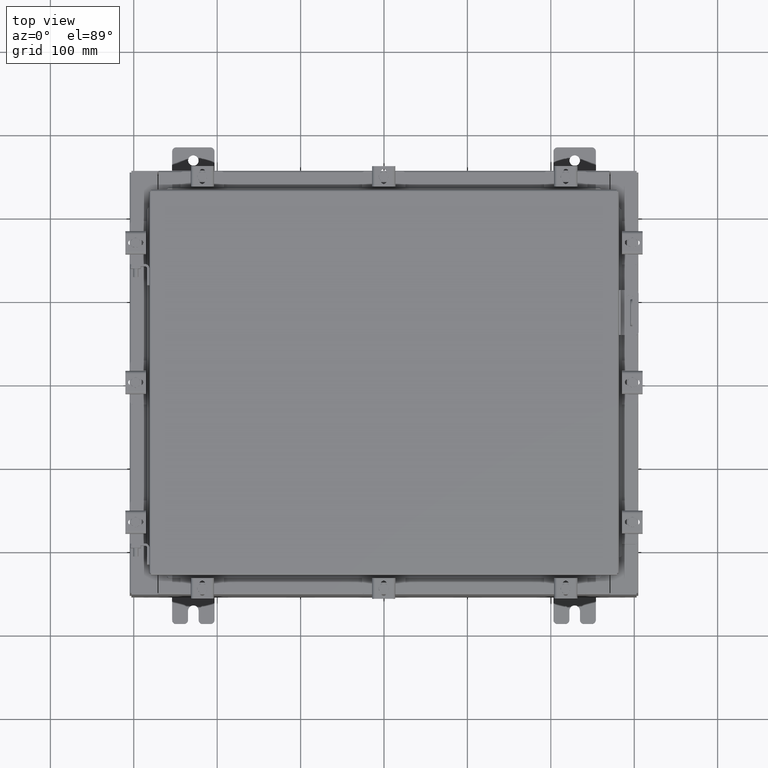
[diagram: clean part render]
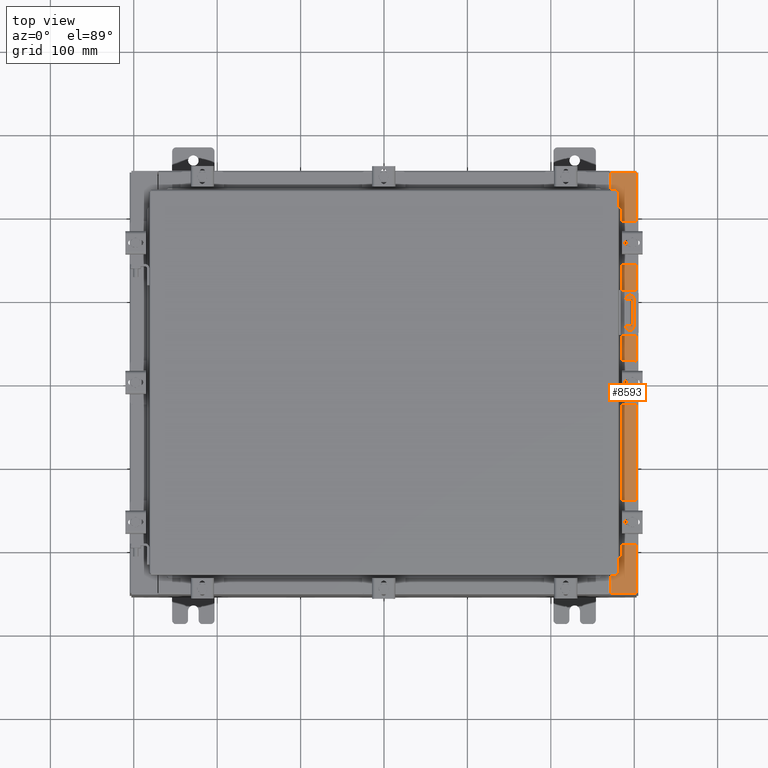
[diagram: same view with one face highlighted and labeled with its STEP entity id]
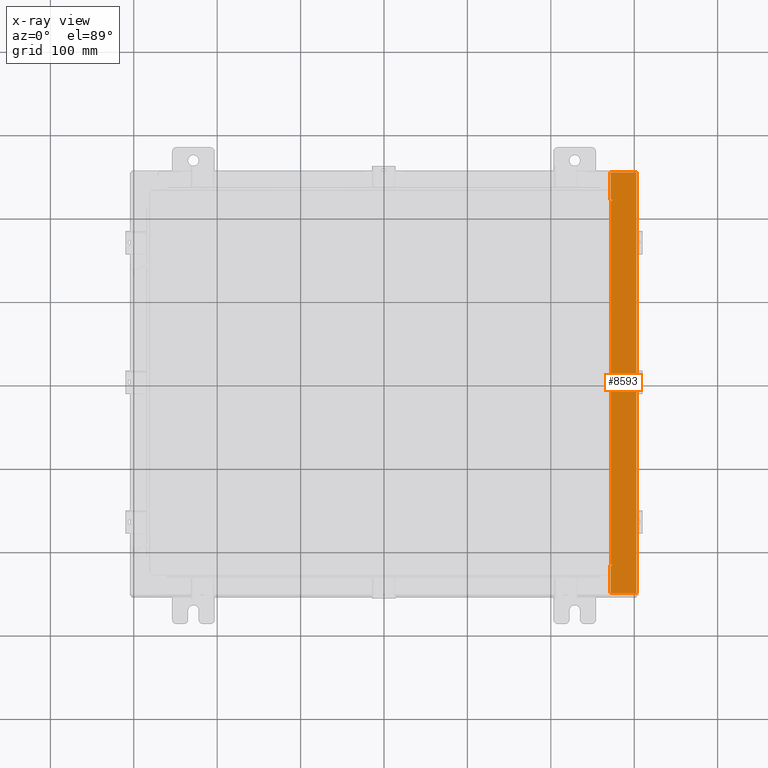
[diagram: x-ray of the same camera — body ghosted, the highlighted face saturated]
A machine part, top view. The second image highlights one B-rep face of the part: STEP entity #8593.
The next image is the same camera in x-ray: the body ghosted, the highlighted face saturated — about 0% of this face is hidden behind the body in this view.
In plain terms, the highlighted planar face has unit normal (-0, 0, -1).
Its self-contained STEP definition (entity closure, byte-faithful):
#111 = ORIENTED_EDGE ( 'NONE', *, *, #254, .T. ) ;
#127 = EDGE_CURVE ( 'NONE', #11660, #14030, #6519, .T. ) ;
#254 = EDGE_CURVE ( 'NONE', #18483, #17868, #808, .T. ) ;
#571 = ORIENTED_EDGE ( 'NONE', *, *, #13013, .T. ) ;
#588 = LINE ( 'NONE', #12952, #5761 ) ;
#620 = VECTOR ( 'NONE', #3052, 39.37007874015748100 ) ;
#745 = DIRECTION ( 'NONE',  ( -0.0000000000000000000, 1.000000000000000000, -0.0000000000000000000 ) ) ;
#808 = LINE ( 'NONE', #12925, #8984 ) ;
#1196 = LINE ( 'NONE', #20434, #620 ) ;
#1209 = ORIENTED_EDGE ( 'NONE', *, *, #2148, .F. ) ;
#1398 = VERTEX_POINT ( 'NONE', #4276 ) ;
#1487 = DIRECTION ( 'NONE',  ( 7.132762385546384700E-015, 0.0000000000000000000, 1.000000000000000000 ) ) ;
#1531 = CARTESIAN_POINT ( 'NONE',  ( 10.69970000000002800, 9.925299999999992900, 7.925300000000008900 ) ) ;
#1819 = CARTESIAN_POINT ( 'NONE',  ( 10.69970000000002800, 1.177997802698536000E-015, 7.925300000000008900 ) ) ;
#2040 = VECTOR ( 'NONE', #18435, 39.37007874015748100 ) ;
#2148 = EDGE_CURVE ( 'NONE', #22126, #11660, #22000, .T. ) ;
#2288 = CARTESIAN_POINT ( 'NONE',  ( 10.69970000000003000, -9.925300000000001800, 7.925300000000008900 ) ) ;
#2714 = ORIENTED_EDGE ( 'NONE', *, *, #20983, .F. ) ;
#3016 = CARTESIAN_POINT ( 'NONE',  ( 10.75005000000003000, -8.612425000000001800, 7.925300000000009800 ) ) ;
#3052 = DIRECTION ( 'NONE',  ( -1.000000000000000000, 2.170286390199955400E-014, -2.170286390199955400E-014 ) ) ;
#3524 = ORIENTED_EDGE ( 'NONE', *, *, #8739, .T. ) ;
#3925 = CARTESIAN_POINT ( 'NONE',  ( 10.75005000000003000, 8.593749999999994700, 7.925300000000008900 ) ) ;
#3950 = VECTOR ( 'NONE', #15756, 39.37007874015748100 ) ;
#4162 = ORIENTED_EDGE ( 'NONE', *, *, #10059, .F. ) ;
#4176 = EDGE_CURVE ( 'NONE', #20957, #13509, #22478, .T. ) ;
#4201 = EDGE_CURVE ( 'NONE', #18989, #20957, #12658, .T. ) ;
#4276 = CARTESIAN_POINT ( 'NONE',  ( 11.91230000000002700, -9.925300000000001800, 7.925300000000000000 ) ) ;
#4877 = CARTESIAN_POINT ( 'NONE',  ( 10.75005000000003000, 8.631099999999996400, 7.925300000000008900 ) ) ;
#4943 = PLANE ( 'NONE',  #20844 ) ;
#5319 = VECTOR ( 'NONE', #14526, 39.37007874015748100 ) ;
#5365 = EDGE_CURVE ( 'NONE', #16488, #18989, #588, .T. ) ;
#5761 = VECTOR ( 'NONE', #745, 39.37007874015748100 ) ;
#5959 = DIRECTION ( 'NONE',  ( -1.000000000000000000, 0.0000000000000000000, 0.0000000000000000000 ) ) ;
#6173 = CARTESIAN_POINT ( 'NONE',  ( 10.71270000000003000, 8.593749999999996400, 7.925300000000009800 ) ) ;
#6192 = CARTESIAN_POINT ( 'NONE',  ( 10.69970000000002800, 8.631099999999996400, 7.925300000000008900 ) ) ;
#6519 = CIRCLE ( 'NONE', #9938, 0.01867499999999949400 ) ;
#6837 = VERTEX_POINT ( 'NONE', #2288 ) ;
#6999 = CARTESIAN_POINT ( 'NONE',  ( 10.69970000000002800, -8.631100000000003500, 7.925300000000008900 ) ) ;
#7761 = CARTESIAN_POINT ( 'NONE',  ( 10.71270000000003000, -8.593750000000003600, 7.925300000000009800 ) ) ;
#8020 = VECTOR ( 'NONE', #8569, 39.37007874015748100 ) ;
#8068 = EDGE_LOOP ( 'NONE', ( #1209, #8471, #571, #2714, #111, #3524, #4162, #17581, #19713, #20200, #16867, #10732 ) ) ;
#8471 = ORIENTED_EDGE ( 'NONE', *, *, #14288, .T. ) ;
#8569 = DIRECTION ( 'NONE',  ( 1.000000000000000000, 0.0000000000000000000, 0.0000000000000000000 ) ) ;
#8593 = ADVANCED_FACE ( 'NONE', ( #14335 ), #4943, .F. ) ;
#8609 = LINE ( 'NONE', #1819, #3950 ) ;
#8739 = EDGE_CURVE ( 'NONE', #17868, #18334, #8609, .T. ) ;
#8777 = CARTESIAN_POINT ( 'NONE',  ( 5.679009539018295300E-014, -9.925300000000001800, 7.925300000000085300 ) ) ;
#8799 = VECTOR ( 'NONE', #17522, 39.37007874015748100 ) ;
#8984 = VECTOR ( 'NONE', #16658, 39.37007874015748100 ) ;
#9938 = AXIS2_PLACEMENT_3D ( 'NONE', #3016, #22226, #20923 ) ;
#10041 = CARTESIAN_POINT ( 'NONE',  ( 11.91230000000002700, 9.925299999999991100, 7.925300000000000000 ) ) ;
#10059 = EDGE_CURVE ( 'NONE', #13509, #18334, #1196, .T. ) ;
#10222 = DIRECTION ( 'NONE',  ( -7.132762385546384700E-015, 0.0000000000000000000, -1.000000000000000000 ) ) ;
#10732 = ORIENTED_EDGE ( 'NONE', *, *, #127, .F. ) ;
#11027 = CARTESIAN_POINT ( 'NONE',  ( 11.91230000000002700, -9.925300000000001800, 7.925300000000000000 ) ) ;
#11660 = VERTEX_POINT ( 'NONE', #14427 ) ;
#11944 = CARTESIAN_POINT ( 'NONE',  ( 10.75005000000003000, 8.612424999999996400, 7.925300000000009800 ) ) ;
#12658 = LINE ( 'NONE', #19014, #8020 ) ;
#12770 = VECTOR ( 'NONE', #5959, 39.37007874015748100 ) ;
#12925 = CARTESIAN_POINT ( 'NONE',  ( 5.679009539018295300E-014, 9.925299999999996500, 7.925300000000085300 ) ) ;
#12952 = CARTESIAN_POINT ( 'NONE',  ( 10.71270000000003000, -8.593750000000003600, 7.925300000000009800 ) ) ;
#13013 = EDGE_CURVE ( 'NONE', #6837, #1398, #13450, .T. ) ;
#13450 = LINE ( 'NONE', #8777, #8799 ) ;
#13509 = VERTEX_POINT ( 'NONE', #4877 ) ;
#13680 = DIRECTION ( 'NONE',  ( 1.000000000000000000, 0.0000000000000000000, 0.0000000000000000000 ) ) ;
#14030 = VERTEX_POINT ( 'NONE', #20104 ) ;
#14288 = EDGE_CURVE ( 'NONE', #22126, #6837, #20036, .T. ) ;
#14335 = FACE_OUTER_BOUND ( 'NONE', #8068, .T. ) ;
#14427 = CARTESIAN_POINT ( 'NONE',  ( 10.75005000000003000, -8.631100000000003500, 7.925300000000008900 ) ) ;
#14526 = DIRECTION ( 'NONE',  ( -0.0000000000000000000, -1.000000000000000000, -0.0000000000000000000 ) ) ;
#15356 = DIRECTION ( 'NONE',  ( 1.000000000000000000, 2.170286390199955400E-014, 2.170286390199955400E-014 ) ) ;
#15756 = DIRECTION ( 'NONE',  ( 1.100963394019027800E-016, -1.000000000000000000, -7.852910284722405000E-031 ) ) ;
#16488 = VERTEX_POINT ( 'NONE', #7761 ) ;
#16658 = DIRECTION ( 'NONE',  ( -1.000000000000000000, 0.0000000000000000000, 7.132762385546384700E-015 ) ) ;
#16660 = CARTESIAN_POINT ( 'NONE',  ( 10.69970000000002800, 1.177997802698536000E-015, 7.925300000000008900 ) ) ;
#16867 = ORIENTED_EDGE ( 'NONE', *, *, #18216, .F. ) ;
#17121 = CARTESIAN_POINT ( 'NONE',  ( 10.69970000000002800, -8.631100000000003500, 7.925300000000008900 ) ) ;
#17391 = LINE ( 'NONE', #18097, #12770 ) ;
#17522 = DIRECTION ( 'NONE',  ( 1.000000000000000000, 0.0000000000000000000, -7.132762385546384700E-015 ) ) ;
#17581 = ORIENTED_EDGE ( 'NONE', *, *, #4176, .F. ) ;
#17868 = VERTEX_POINT ( 'NONE', #1531 ) ;
#17907 = VECTOR ( 'NONE', #15356, 39.37007874015748100 ) ;
#18097 = CARTESIAN_POINT ( 'NONE',  ( 10.75005000000003000, -8.593750000000003600, 7.925300000000009800 ) ) ;
#18216 = EDGE_CURVE ( 'NONE', #14030, #16488, #17391, .T. ) ;
#18334 = VERTEX_POINT ( 'NONE', #6192 ) ;
#18435 = DIRECTION ( 'NONE',  ( 1.100963394019027800E-016, -1.000000000000000000, -7.852910284722405000E-031 ) ) ;
#18483 = VERTEX_POINT ( 'NONE', #10041 ) ;
#18989 = VERTEX_POINT ( 'NONE', #6173 ) ;
#19014 = CARTESIAN_POINT ( 'NONE',  ( 10.71270000000003000, 8.593749999999996400, 7.925300000000009800 ) ) ;
#19257 = LINE ( 'NONE', #11027, #5319 ) ;
#19713 = ORIENTED_EDGE ( 'NONE', *, *, #4201, .F. ) ;
#20036 = LINE ( 'NONE', #16660, #2040 ) ;
#20104 = CARTESIAN_POINT ( 'NONE',  ( 10.75005000000003000, -8.593750000000003600, 7.925300000000008900 ) ) ;
#20200 = ORIENTED_EDGE ( 'NONE', *, *, #5365, .F. ) ;
#20434 = CARTESIAN_POINT ( 'NONE',  ( 10.75005000000003000, 8.631099999999996400, 7.925300000000009800 ) ) ;
#20643 = CARTESIAN_POINT ( 'NONE',  ( 5.679009539018295300E-014, 0.0000000000000000000, 7.925300000000085300 ) ) ;
#20772 = AXIS2_PLACEMENT_3D ( 'NONE', #11944, #1487, #13680 ) ;
#20844 = AXIS2_PLACEMENT_3D ( 'NONE', #20643, #10222, #22385 ) ;
#20923 = DIRECTION ( 'NONE',  ( 1.000000000000000000, 0.0000000000000000000, 0.0000000000000000000 ) ) ;
#20957 = VERTEX_POINT ( 'NONE', #3925 ) ;
#20983 = EDGE_CURVE ( 'NONE', #18483, #1398, #19257, .T. ) ;
#22000 = LINE ( 'NONE', #17121, #17907 ) ;
#22126 = VERTEX_POINT ( 'NONE', #6999 ) ;
#22226 = DIRECTION ( 'NONE',  ( 7.132762385546384700E-015, 0.0000000000000000000, 1.000000000000000000 ) ) ;
#22385 = DIRECTION ( 'NONE',  ( -1.000000000000000000, 0.0000000000000000000, 7.132762385546384700E-015 ) ) ;
#22478 = CIRCLE ( 'NONE', #20772, 0.01867499999999949400 ) ;